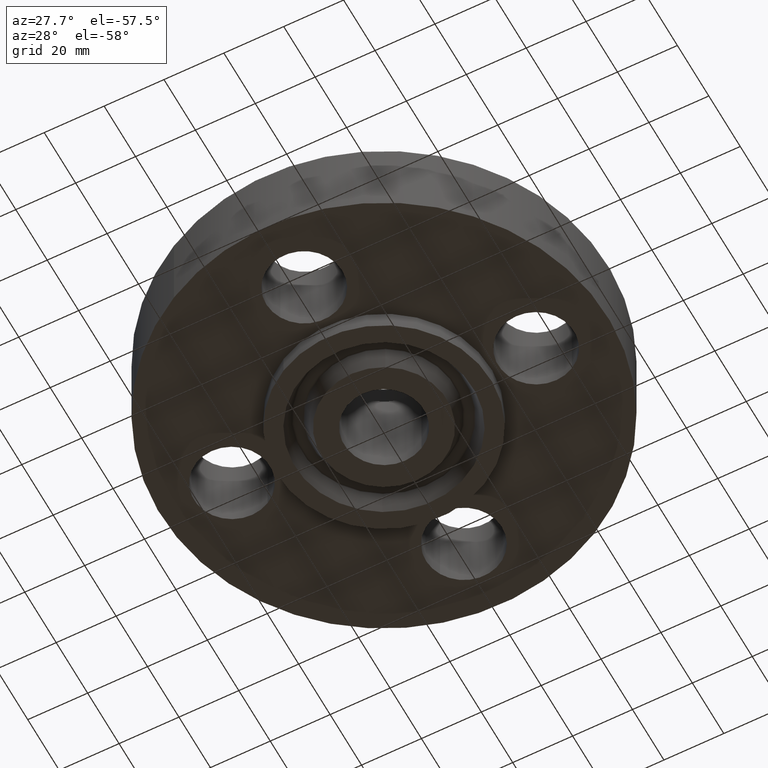
[diagram: clean part render]
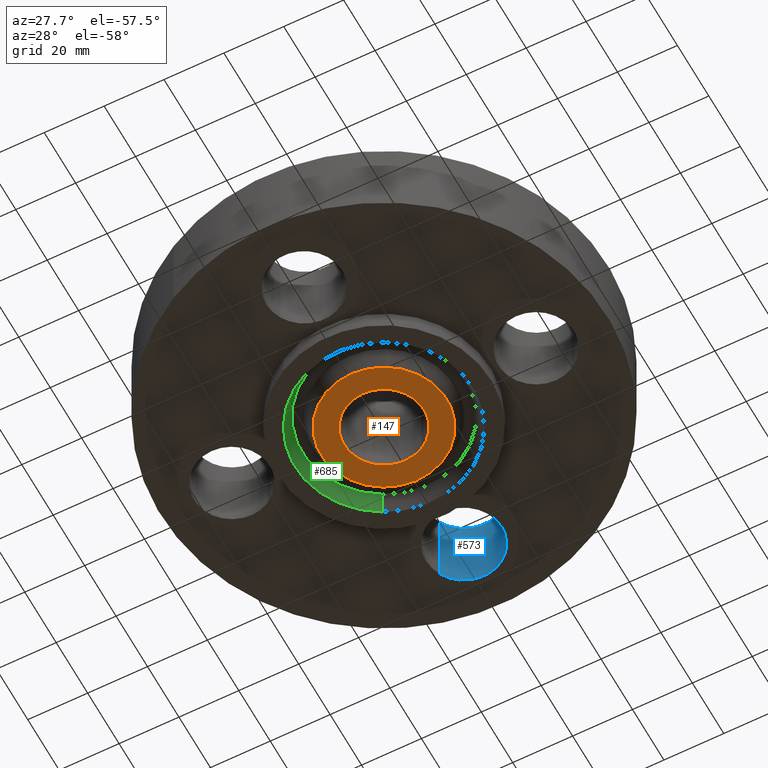
[diagram: same view with three faces highlighted in distinct colors, each labeled with its STEP entity id]
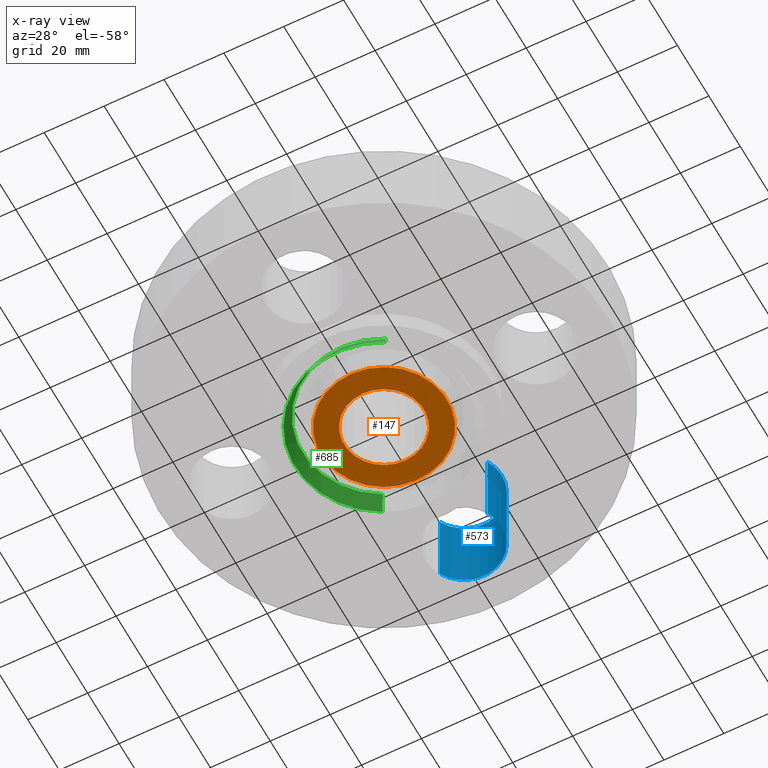
[diagram: x-ray of the same camera — body ghosted, the three highlighted faces saturated]
A machine part, auxiliary view with three faces highlighted in distinct colors.
The next image is the same camera in x-ray (body ghosted, the three faces saturated) — at least one of them is partly hidden behind the body in this view.
Their STEP definitions:

[orange] entity #147 — the highlighted planar face has unit normal (0, 0, -1).
#91=AXIS2_PLACEMENT_3D('Circle Axis2P3D',#89,#90,$) ;
#110=AXIS2_PLACEMENT_3D('Circle Axis2P3D',#108,#109,$) ;
#123=AXIS2_PLACEMENT_3D('Plane Axis2P3D',#120,#121,#122) ;
#127=AXIS2_PLACEMENT_3D('Circle Axis2P3D',#125,#126,$) ;
#136=AXIS2_PLACEMENT_3D('Circle Axis2P3D',#134,#135,$) ;
#86=CARTESIAN_POINT('Vertex',(0.251458694999,0.460292053713,-0.250000000001)) ;
#89=CARTESIAN_POINT('Axis2P3D Location',(0.,0.,-0.250000000001)) ;
#93=CARTESIAN_POINT('Vertex',(-0.251458694999,-0.460292053713,-0.250000000001)) ;
#108=CARTESIAN_POINT('Axis2P3D Location',(0.,0.,-0.250000000001)) ;
#120=CARTESIAN_POINT('Axis2P3D Location',(0.,0.524500000002,-0.250000000001)) ;
#125=CARTESIAN_POINT('Axis2P3D Location',(-1.39870617276E-016,6.99353086378E-017,-0.250000000001)) ;
#129=CARTESIAN_POINT('Vertex',(-0.396964345966,0.726638361248,-0.250000000001)) ;
#131=CARTESIAN_POINT('Vertex',(0.396964345966,-0.726638361248,-0.250000000001)) ;
#134=CARTESIAN_POINT('Axis2P3D Location',(-1.39870617276E-016,6.99353086378E-017,-0.250000000001)) ;
#90=DIRECTION('Axis2P3D Direction',(0.,0.,-0.0393700787402)) ;
#109=DIRECTION('Axis2P3D Direction',(0.,0.,-0.0393700787402)) ;
#121=DIRECTION('Axis2P3D Direction',(0.,0.,-0.0393700787402)) ;
#122=DIRECTION('Axis2P3D XDirection',(0.0393700787402,0.,0.)) ;
#126=DIRECTION('Axis2P3D Direction',(0.,0.,-0.0393700787402)) ;
#135=DIRECTION('Axis2P3D Direction',(0.,0.,-0.0393700787402)) ;
#140=ORIENTED_EDGE('',*,*,#133,.T.) ;
#141=ORIENTED_EDGE('',*,*,#138,.T.) ;
#144=ORIENTED_EDGE('',*,*,#95,.F.) ;
#145=ORIENTED_EDGE('',*,*,#112,.F.) ;
#146=FACE_BOUND('',#143,.T.) ;
#147=ADVANCED_FACE('PartBody',(#142,#146),#124,.T.) ;
#92=CIRCLE('generated circle',#91,0.524500000002) ;
#111=CIRCLE('generated circle',#110,0.524500000002) ;
#128=CIRCLE('generated circle',#127,0.828000000003) ;
#137=CIRCLE('generated circle',#136,0.828000000003) ;
#95=EDGE_CURVE('',#87,#94,#92,.T.) ;
#112=EDGE_CURVE('',#94,#87,#111,.T.) ;
#133=EDGE_CURVE('',#130,#132,#128,.T.) ;
#138=EDGE_CURVE('',#132,#130,#137,.T.) ;
#139=EDGE_LOOP('',(#140,#141)) ;
#143=EDGE_LOOP('',(#144,#145)) ;
#142=FACE_OUTER_BOUND('',#139,.T.) ;
#124=PLANE('',#123) ;
#87=VERTEX_POINT('',#86) ;
#94=VERTEX_POINT('',#93) ;
#130=VERTEX_POINT('',#129) ;
#132=VERTEX_POINT('',#131) ;

[blue] entity #573 — the highlighted cylindrical surface (partial cylindrical patch) has radius 12.7 mm, axis along (0, -0, -1).
#305=AXIS2_PLACEMENT_3D('Circle Axis2P3D',#303,#304,$) ;
#546=AXIS2_PLACEMENT_3D('Cylinder Axis2P3D',#543,#544,#545) ;
#564=AXIS2_PLACEMENT_3D('Circle Axis2P3D',#562,#563,$) ;
#298=CARTESIAN_POINT('Vertex',(0.438791280947,1.7602872307,0.)) ;
#300=CARTESIAN_POINT('Vertex',(-0.438791280947,2.23971276931,0.)) ;
#303=CARTESIAN_POINT('Axis2P3D Location',(5.24514814784E-017,2.00000000001,0.)) ;
#543=CARTESIAN_POINT('Axis2P3D Location',(0.,2.00000000001,1.11606299213)) ;
#548=CARTESIAN_POINT('Line Origine',(-0.438791280947,2.23971276931,0.560000000002)) ;
#552=CARTESIAN_POINT('Vertex',(-0.438791280947,2.23971276931,1.12)) ;
#555=CARTESIAN_POINT('Line Origine',(0.438791280947,1.7602872307,0.560000000002)) ;
#559=CARTESIAN_POINT('Vertex',(0.438791280947,1.7602872307,1.12)) ;
#562=CARTESIAN_POINT('Axis2P3D Location',(0.,2.00000000001,1.12)) ;
#304=DIRECTION('Axis2P3D Direction',(0.,0.,-0.0393700787402)) ;
#544=DIRECTION('Axis2P3D Direction',(0.,-0.,-0.0393700787402)) ;
#545=DIRECTION('Axis2P3D XDirection',(0.0345504945626,-0.0188750212049,0.)) ;
#549=DIRECTION('Vector Direction',(0.,0.,-0.0393700787402)) ;
#556=DIRECTION('Vector Direction',(0.,0.,-0.0393700787402)) ;
#563=DIRECTION('Axis2P3D Direction',(0.,-0.,-0.0393700787402)) ;
#550=VECTOR('Line Direction',#549,0.0393700787402) ;
#557=VECTOR('Line Direction',#556,0.0393700787402) ;
#568=ORIENTED_EDGE('',*,*,#554,.F.) ;
#569=ORIENTED_EDGE('',*,*,#307,.T.) ;
#570=ORIENTED_EDGE('',*,*,#561,.T.) ;
#571=ORIENTED_EDGE('',*,*,#566,.F.) ;
#573=ADVANCED_FACE('PartBody',(#572),#547,.F.) ;
#306=CIRCLE('generated circle',#305,0.500000000002) ;
#565=CIRCLE('generated circle',#564,0.500000000002) ;
#547=CYLINDRICAL_SURFACE('generated cylinder',#546,0.500000000002) ;
#307=EDGE_CURVE('',#301,#299,#306,.T.) ;
#554=EDGE_CURVE('',#301,#553,#551,.F.) ;
#561=EDGE_CURVE('',#299,#560,#558,.F.) ;
#566=EDGE_CURVE('',#553,#560,#565,.T.) ;
#567=EDGE_LOOP('',(#568,#569,#570,#571)) ;
#572=FACE_OUTER_BOUND('',#567,.T.) ;
#551=LINE('Line',#548,#550) ;
#558=LINE('Line',#555,#557) ;
#299=VERTEX_POINT('',#298) ;
#301=VERTEX_POINT('',#300) ;
#553=VERTEX_POINT('',#552) ;
#560=VERTEX_POINT('',#559) ;

[green] entity #685 — the highlighted conical surface has half-angle 23 deg.
#211=AXIS2_PLACEMENT_3D('Circle Axis2P3D',#209,#210,$) ;
#646=AXIS2_PLACEMENT_3D('Cone Axis2P3D',#643,#644,#645) ;
#676=AXIS2_PLACEMENT_3D('Circle Axis2P3D',#674,#675,$) ;
#209=CARTESIAN_POINT('Axis2P3D Location',(-1.39870617276E-016,-6.99353086378E-017,-0.250000000001)) ;
#213=CARTESIAN_POINT('Vertex',(0.561886731246,-1.02852676254,-0.250000000001)) ;
#215=CARTESIAN_POINT('Vertex',(-0.561886731246,1.02852676254,-0.250000000001)) ;
#643=CARTESIAN_POINT('Axis2P3D Location',(0.,0.,-0.0188873350169)) ;
#648=CARTESIAN_POINT('Line Origine',(0.538370547572,-0.985480677062,-0.134443667509)) ;
#652=CARTESIAN_POINT('Vertex',(0.514854363898,-0.942434591585,-0.0188873350169)) ;
#659=CARTESIAN_POINT('Vertex',(-0.514854363898,0.942434591585,-0.0188873350169)) ;
#662=CARTESIAN_POINT('Line Origine',(-0.538370547572,0.985480677062,-0.134443667509)) ;
#674=CARTESIAN_POINT('Axis2P3D Location',(0.,0.,-0.0188873350169)) ;
#210=DIRECTION('Axis2P3D Direction',(0.,0.,-0.0393700787402)) ;
#644=DIRECTION('Axis2P3D Direction',(-0.,-0.,-0.0393700787402)) ;
#645=DIRECTION('Axis2P3D XDirection',(0.0188750212049,-0.0345504945626,0.)) ;
#649=DIRECTION('Vector Direction',(0.00737505833565,-0.0134999537303,-0.0362403485611)) ;
#663=DIRECTION('Vector Direction',(-0.00737505833565,0.0134999537303,-0.0362403485611)) ;
#675=DIRECTION('Axis2P3D Direction',(0.,0.,-0.0393700787402)) ;
#650=VECTOR('Line Direction',#649,0.0393700787402) ;
#664=VECTOR('Line Direction',#663,0.0393700787402) ;
#680=ORIENTED_EDGE('',*,*,#217,.T.) ;
#681=ORIENTED_EDGE('',*,*,#666,.T.) ;
#682=ORIENTED_EDGE('',*,*,#678,.T.) ;
#683=ORIENTED_EDGE('',*,*,#654,.F.) ;
#685=ADVANCED_FACE('PartBody',(#684),#647,.F.) ;
#212=CIRCLE('generated circle',#211,1.172) ;
#677=CIRCLE('generated circle',#676,1.07389849401) ;
#647=CONICAL_SURFACE('Cone',#646,1.07389849401,0.401425727959) ;
#217=EDGE_CURVE('',#214,#216,#212,.T.) ;
#654=EDGE_CURVE('',#214,#653,#651,.F.) ;
#666=EDGE_CURVE('',#216,#660,#665,.F.) ;
#678=EDGE_CURVE('',#660,#653,#677,.F.) ;
#679=EDGE_LOOP('',(#680,#681,#682,#683)) ;
#684=FACE_OUTER_BOUND('',#679,.T.) ;
#651=LINE('Line',#648,#650) ;
#665=LINE('Line',#662,#664) ;
#214=VERTEX_POINT('',#213) ;
#216=VERTEX_POINT('',#215) ;
#653=VERTEX_POINT('',#652) ;
#660=VERTEX_POINT('',#659) ;